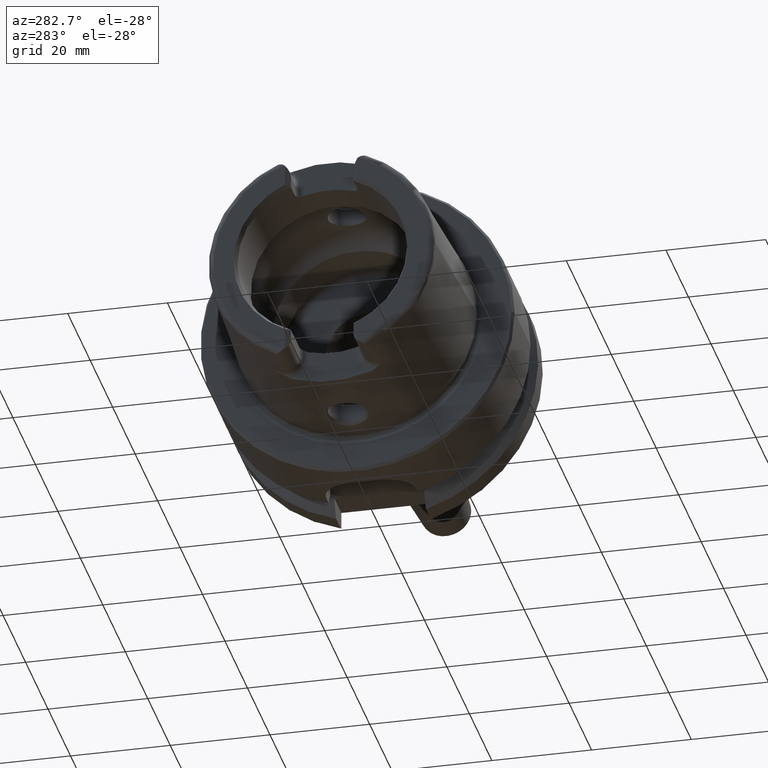
[diagram: clean part render]
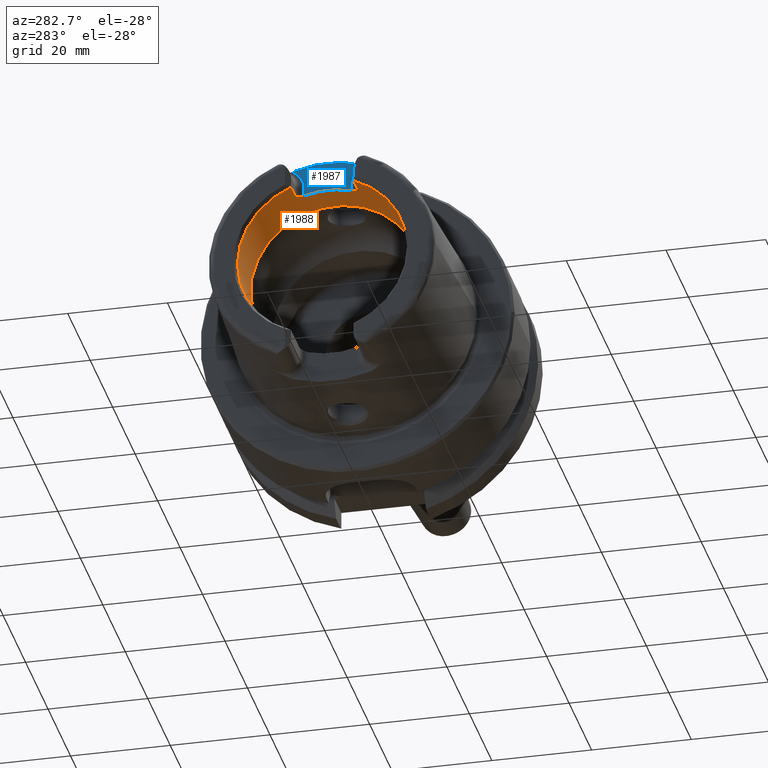
[diagram: same view with the hole feature highlighted: cylindrical wall and planar end face, labeled with their STEP entity ids]
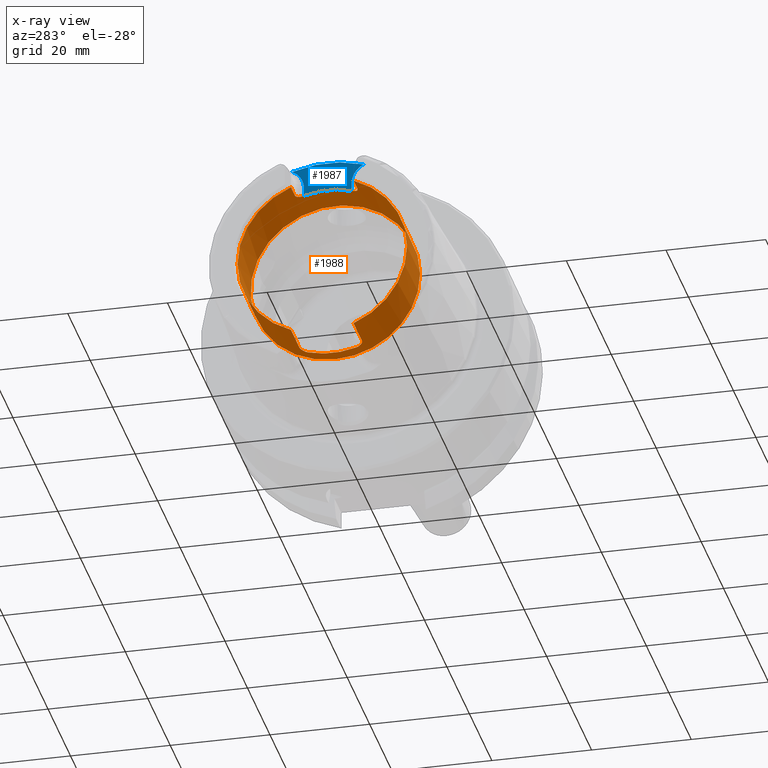
[diagram: x-ray of the same camera — body ghosted, the hole faces saturated]
A machine part, auxiliary view. The highlighted faces form one hole feature of diameter 34 mm: the cylindrical wall (entity #1988, orange) and its adjacent planar end face (entity #1987, blue) — they share a circular edge in the B-rep.
The next image is the same camera in x-ray (body ghosted, the hole faces saturated) — the bore reads through the body.
Wall:
#85=B_SPLINE_CURVE_WITH_KNOTS('',3,(#4143,#4144,#4145,#4146,#4147,#4148,
#4149,#4150,#4151,#4152),.UNSPECIFIED.,.F.,.F.,(4,2,2,2,4),(0.229569660485746,
0.289239803007022,0.348909945528297,0.405407845050218,0.46190574457214),
 .UNSPECIFIED.);
#86=B_SPLINE_CURVE_WITH_KNOTS('',3,(#4161,#4162,#4163,#4164,#4165,#4166,
#4167,#4168,#4169,#4170),.UNSPECIFIED.,.F.,.F.,(4,2,2,2,4),(0.46190574457214,
0.519239917776744,0.576574090981348,0.635410522815223,0.694246954649097),
 .UNSPECIFIED.);
#87=B_SPLINE_CURVE_WITH_KNOTS('',3,(#4179,#4180,#4181,#4182,#4183,#4184,
#4185,#4186,#4187,#4188),.UNSPECIFIED.,.F.,.F.,(4,2,2,2,4),(0.461905744572139,
0.518403644094061,0.574901543615982,0.634571686137257,0.694241828658533),
 .UNSPECIFIED.);
#88=B_SPLINE_CURVE_WITH_KNOTS('',3,(#4202,#4203,#4204,#4205,#4206,#4207,
#4208,#4209,#4210,#4211),.UNSPECIFIED.,.F.,.F.,(4,2,2,2,4),(0.229569660485747,
0.289239803007022,0.348909945528297,0.405407845050218,0.46190574457214),
 .UNSPECIFIED.);
#274=FACE_OUTER_BOUND('',#392,.T.);
#392=EDGE_LOOP('',(#1748,#1749,#1750,#1751,#1752,#1753,#1754,#1755,#1756,
#1757,#1758,#1759,#1760,#1761,#1762,#1763,#1764));
#438=LINE('',#2982,#543);
#444=LINE('',#2998,#549);
#450=LINE('',#3053,#555);
#454=LINE('',#3119,#559);
#516=LINE('',#4226,#621);
#543=VECTOR('',#2367,10.);
#549=VECTOR('',#2381,10.);
#555=VECTOR('',#2403,10.);
#559=VECTOR('',#2427,10.);
#621=VECTOR('',#2747,17.);
#714=CIRCLE('',#2208,17.);
#719=CIRCLE('',#2219,17.);
#720=CIRCLE('',#2221,17.);
#721=CIRCLE('',#2222,17.);
#722=CIRCLE('',#2223,17.);
#723=CIRCLE('',#2224,17.);
#724=CIRCLE('',#2225,17.);
#778=VERTEX_POINT('',#2935);
#785=VERTEX_POINT('',#2981);
#788=VERTEX_POINT('',#2988);
#791=VERTEX_POINT('',#2996);
#799=VERTEX_POINT('',#3043);
#802=VERTEX_POINT('',#3051);
#809=VERTEX_POINT('',#3086);
#814=VERTEX_POINT('',#3118);
#921=VERTEX_POINT('',#4141);
#923=VERTEX_POINT('',#4160);
#925=VERTEX_POINT('',#4178);
#926=VERTEX_POINT('',#4195);
#928=VERTEX_POINT('',#4222);
#929=VERTEX_POINT('',#4223);
#930=VERTEX_POINT('',#4225);
#992=EDGE_CURVE('',#785,#778,#438,.T.);
#1000=EDGE_CURVE('',#788,#791,#444,.T.);
#1013=EDGE_CURVE('',#799,#802,#450,.T.);
#1027=EDGE_CURVE('',#814,#809,#454,.T.);
#1193=EDGE_CURVE('',#921,#802,#85,.T.);
#1197=EDGE_CURVE('',#814,#923,#86,.T.);
#1202=EDGE_CURVE('',#785,#925,#87,.T.);
#1206=EDGE_CURVE('',#926,#925,#714,.T.);
#1210=EDGE_CURVE('',#926,#791,#88,.T.);
#1214=EDGE_CURVE('',#921,#923,#719,.T.);
#1215=EDGE_CURVE('',#928,#929,#720,.T.);
#1216=EDGE_CURVE('',#928,#930,#516,.T.);
#1217=EDGE_CURVE('',#799,#930,#721,.T.);
#1218=EDGE_CURVE('',#788,#809,#722,.T.);
#1219=EDGE_CURVE('',#930,#778,#723,.T.);
#1220=EDGE_CURVE('',#929,#928,#724,.T.);
#1748=ORIENTED_EDGE('',*,*,#1215,.F.);
#1749=ORIENTED_EDGE('',*,*,#1216,.T.);
#1750=ORIENTED_EDGE('',*,*,#1217,.F.);
#1751=ORIENTED_EDGE('',*,*,#1013,.T.);
#1752=ORIENTED_EDGE('',*,*,#1193,.F.);
#1753=ORIENTED_EDGE('',*,*,#1214,.T.);
#1754=ORIENTED_EDGE('',*,*,#1197,.F.);
#1755=ORIENTED_EDGE('',*,*,#1027,.T.);
#1756=ORIENTED_EDGE('',*,*,#1218,.F.);
#1757=ORIENTED_EDGE('',*,*,#1000,.T.);
#1758=ORIENTED_EDGE('',*,*,#1210,.F.);
#1759=ORIENTED_EDGE('',*,*,#1206,.T.);
#1760=ORIENTED_EDGE('',*,*,#1202,.F.);
#1761=ORIENTED_EDGE('',*,*,#992,.T.);
#1762=ORIENTED_EDGE('',*,*,#1219,.F.);
#1763=ORIENTED_EDGE('',*,*,#1216,.F.);
#1764=ORIENTED_EDGE('',*,*,#1220,.F.);
#1894=CYLINDRICAL_SURFACE('',#2220,17.);
#1988=ADVANCED_FACE('',(#274),#1894,.F.);
#2208=AXIS2_PLACEMENT_3D('',#4196,#2717,#2718);
#2219=AXIS2_PLACEMENT_3D('',#4220,#2741,#2742);
#2220=AXIS2_PLACEMENT_3D('',#4221,#2743,#2744);
#2221=AXIS2_PLACEMENT_3D('',#4224,#2745,#2746);
#2222=AXIS2_PLACEMENT_3D('',#4227,#2748,#2749);
#2223=AXIS2_PLACEMENT_3D('',#4228,#2750,#2751);
#2224=AXIS2_PLACEMENT_3D('',#4229,#2752,#2753);
#2225=AXIS2_PLACEMENT_3D('',#4230,#2754,#2755);
#2367=DIRECTION('',(-1.,0.,0.));
#2381=DIRECTION('',(1.,0.,0.));
#2403=DIRECTION('',(1.,0.,0.));
#2427=DIRECTION('',(-1.,0.,0.));
#2717=DIRECTION('center_axis',(-1.,0.,0.));
#2718=DIRECTION('ref_axis',(0.,1.,0.));
#2741=DIRECTION('center_axis',(-1.,0.,0.));
#2742=DIRECTION('ref_axis',(0.,1.,0.));
#2743=DIRECTION('center_axis',(-1.,0.,0.));
#2744=DIRECTION('ref_axis',(0.,1.,0.));
#2745=DIRECTION('center_axis',(-1.,0.,0.));
#2746=DIRECTION('ref_axis',(0.,0.,1.));
#2747=DIRECTION('',(-1.,0.,0.));
#2748=DIRECTION('center_axis',(1.,0.,0.));
#2749=DIRECTION('ref_axis',(0.,-1.,0.));
#2750=DIRECTION('center_axis',(1.,0.,0.));
#2751=DIRECTION('ref_axis',(0.,-1.,0.));
#2752=DIRECTION('center_axis',(1.,0.,0.));
#2753=DIRECTION('ref_axis',(0.,-1.,0.));
#2754=DIRECTION('center_axis',(-1.,0.,0.));
#2755=DIRECTION('ref_axis',(0.,0.,1.));
#2935=CARTESIAN_POINT('',(-31.,-6.27,-15.8014904360317));
#2981=CARTESIAN_POINT('',(-23.5,-6.27,-15.8014904360317));
#2982=CARTESIAN_POINT('',(-25.6423502691896,-6.27,-15.8014904360317));
#2988=CARTESIAN_POINT('',(-31.,6.27,-15.8014904360317));
#2996=CARTESIAN_POINT('',(-23.5,6.27,-15.8014904360317));
#2998=CARTESIAN_POINT('',(-25.6423502691896,6.27,-15.8014904360317));
#3043=CARTESIAN_POINT('',(-31.,-6.27,15.8014904360317));
#3051=CARTESIAN_POINT('',(-27.5,-6.27,15.8014904360317));
#3053=CARTESIAN_POINT('',(-25.6423502691896,-6.27,15.8014904360317));
#3086=CARTESIAN_POINT('',(-31.,6.27,15.8014904360317));
#3118=CARTESIAN_POINT('',(-27.5,6.27,15.8014904360317));
#3119=CARTESIAN_POINT('',(-25.6423502691896,6.27,15.8014904360317));
#4141=CARTESIAN_POINT('',(-26.,-4.77,16.3170800083839));
#4143=CARTESIAN_POINT('Ctrl Pts',(-26.,-4.77,16.3170800083839));
#4144=CARTESIAN_POINT('Ctrl Pts',(-26.,-4.96091029208457,16.2612708750845));
#4145=CARTESIAN_POINT('Ctrl Pts',(-26.0385404635846,-5.16378617408596,16.1979610859593));
#4146=CARTESIAN_POINT('Ctrl Pts',(-26.1950909803916,-5.53690543536203,16.0742436586733));
#4147=CARTESIAN_POINT('Ctrl Pts',(-26.3130861154278,-5.70721093092864,16.01400454532));
#4148=CARTESIAN_POINT('Ctrl Pts',(-26.5811791540138,-5.96960590306613,15.9179857910505));
#4149=CARTESIAN_POINT('Ctrl Pts',(-26.7467155703026,-6.082078486584,15.8749745356799));
#4150=CARTESIAN_POINT('Ctrl Pts',(-27.1119229195206,-6.23232125085234,15.8165946761251));
#4151=CARTESIAN_POINT('Ctrl Pts',(-27.3116736682603,-6.27,15.8014904360317));
#4152=CARTESIAN_POINT('Ctrl Pts',(-27.5,-6.27,15.8014904360317));
#4160=CARTESIAN_POINT('',(-26.,4.77,16.3170800083839));
#4161=CARTESIAN_POINT('Ctrl Pts',(-27.5,6.27,15.8014904360317));
#4162=CARTESIAN_POINT('Ctrl Pts',(-27.308886089318,6.27,15.8014904360317));
#4163=CARTESIAN_POINT('Ctrl Pts',(-27.1064099842243,6.23121026569193,15.8170435837256));
#4164=CARTESIAN_POINT('Ctrl Pts',(-26.7371019784685,6.07691823919465,15.8769617281184));
#4165=CARTESIAN_POINT('Ctrl Pts',(-26.5701870418163,5.96150738537594,15.9210500039306));
#4166=CARTESIAN_POINT('Ctrl Pts',(-26.3050641818979,5.69638452545756,16.017853695422));
#4167=CARTESIAN_POINT('Ctrl Pts',(-26.1900212186221,5.52750941197086,16.0774506535614));
#4168=CARTESIAN_POINT('Ctrl Pts',(-26.0374824299787,5.15846789211413,16.1996292802954));
#4169=CARTESIAN_POINT('Ctrl Pts',(-26.,4.95824289522375,16.2620506397863));
#4170=CARTESIAN_POINT('Ctrl Pts',(-26.,4.77,16.3170800083839));
#4178=CARTESIAN_POINT('',(-22.,-4.77,-16.3170800083839));
#4179=CARTESIAN_POINT('Ctrl Pts',(-23.5,-6.27,-15.8014904360317));
#4180=CARTESIAN_POINT('Ctrl Pts',(-23.3116736682603,-6.27,-15.8014904360317));
#4181=CARTESIAN_POINT('Ctrl Pts',(-23.1119229195206,-6.23232125085234,-15.8165946761251));
#4182=CARTESIAN_POINT('Ctrl Pts',(-22.7467155703026,-6.082078486584,-15.8749745356799));
#4183=CARTESIAN_POINT('Ctrl Pts',(-22.5811791540138,-5.96960590306613,-15.9179857910505));
#4184=CARTESIAN_POINT('Ctrl Pts',(-22.3130861154278,-5.70721093092864,-16.01400454532));
#4185=CARTESIAN_POINT('Ctrl Pts',(-22.1950909803916,-5.53690543536204,-16.0742436586733));
#4186=CARTESIAN_POINT('Ctrl Pts',(-22.0385404635846,-5.16378617408596,-16.1979610859593));
#4187=CARTESIAN_POINT('Ctrl Pts',(-22.,-4.96091029208457,-16.2612708750845));
#4188=CARTESIAN_POINT('Ctrl Pts',(-22.,-4.77,-16.3170800083839));
#4195=CARTESIAN_POINT('',(-22.,4.77,-16.3170800083839));
#4196=CARTESIAN_POINT('Origin',(-22.,0.,0.));
#4202=CARTESIAN_POINT('Ctrl Pts',(-22.,4.77,-16.3170800083839));
#4203=CARTESIAN_POINT('Ctrl Pts',(-22.,4.96091029208457,-16.2612708750845));
#4204=CARTESIAN_POINT('Ctrl Pts',(-22.0385404635846,5.16378617408596,-16.1979610859593));
#4205=CARTESIAN_POINT('Ctrl Pts',(-22.1950909803916,5.53690543536204,-16.0742436586733));
#4206=CARTESIAN_POINT('Ctrl Pts',(-22.3130861154278,5.70721093092864,-16.01400454532));
#4207=CARTESIAN_POINT('Ctrl Pts',(-22.5811791540138,5.96960590306613,-15.9179857910505));
#4208=CARTESIAN_POINT('Ctrl Pts',(-22.7467155703026,6.082078486584,-15.8749745356799));
#4209=CARTESIAN_POINT('Ctrl Pts',(-23.1119229195206,6.23232125085234,-15.8165946761251));
#4210=CARTESIAN_POINT('Ctrl Pts',(-23.3116736682603,6.27,-15.8014904360317));
#4211=CARTESIAN_POINT('Ctrl Pts',(-23.5,6.27,-15.8014904360317));
#4220=CARTESIAN_POINT('Origin',(-26.,0.,0.));
#4221=CARTESIAN_POINT('Origin',(-25.6423502691896,0.,0.));
#4222=CARTESIAN_POINT('',(-19.2847005383793,-17.,2.0818995585505E-15));
#4223=CARTESIAN_POINT('',(-19.2847005383793,-2.0818995585505E-15,-17.));
#4224=CARTESIAN_POINT('Origin',(-19.2847005383793,0.,0.));
#4225=CARTESIAN_POINT('',(-31.,-17.,2.0818995585505E-15));
#4226=CARTESIAN_POINT('',(-25.6423502691896,-17.,2.0818995585505E-15));
#4227=CARTESIAN_POINT('Origin',(-31.,0.,0.));
#4228=CARTESIAN_POINT('Origin',(-31.,0.,0.));
#4229=CARTESIAN_POINT('Origin',(-31.,0.,0.));
#4230=CARTESIAN_POINT('Origin',(-19.2847005383793,0.,0.));
End face:
#138=PLANE('',#2218);
#273=FACE_OUTER_BOUND('',#391,.T.);
#391=EDGE_LOOP('',(#1742,#1743,#1744,#1745,#1746,#1747));
#510=LINE('',#4142,#615);
#511=LINE('',#4171,#616);
#615=VECTOR('',#2683,10.);
#616=VECTOR('',#2696,10.);
#662=CIRCLE('',#2098,23.0180260521042);
#707=CIRCLE('',#2194,4.38);
#709=CIRCLE('',#2197,4.38);
#719=CIRCLE('',#2219,17.);
#826=VERTEX_POINT('',#3333);
#827=VERTEX_POINT('',#3348);
#920=VERTEX_POINT('',#4139);
#921=VERTEX_POINT('',#4141);
#922=VERTEX_POINT('',#4156);
#923=VERTEX_POINT('',#4160);
#1045=EDGE_CURVE('',#826,#827,#662,.T.);
#1192=EDGE_CURVE('',#920,#921,#510,.T.);
#1194=EDGE_CURVE('',#827,#920,#707,.T.);
#1196=EDGE_CURVE('',#922,#826,#709,.T.);
#1198=EDGE_CURVE('',#923,#922,#511,.T.);
#1214=EDGE_CURVE('',#921,#923,#719,.T.);
#1742=ORIENTED_EDGE('',*,*,#1194,.F.);
#1743=ORIENTED_EDGE('',*,*,#1045,.F.);
#1744=ORIENTED_EDGE('',*,*,#1196,.F.);
#1745=ORIENTED_EDGE('',*,*,#1198,.F.);
#1746=ORIENTED_EDGE('',*,*,#1214,.F.);
#1747=ORIENTED_EDGE('',*,*,#1192,.F.);
#1987=ADVANCED_FACE('',(#273),#138,.T.);
#2098=AXIS2_PLACEMENT_3D('',#3349,#2441,#2442);
#2194=AXIS2_PLACEMENT_3D('',#4154,#2686,#2687);
#2197=AXIS2_PLACEMENT_3D('',#4158,#2692,#2693);
#2218=AXIS2_PLACEMENT_3D('',#4219,#2739,#2740);
#2219=AXIS2_PLACEMENT_3D('',#4220,#2741,#2742);
#2441=DIRECTION('center_axis',(1.,0.,0.));
#2442=DIRECTION('ref_axis',(0.,1.,0.));
#2683=DIRECTION('',(0.,-1.58830189502884E-16,-1.));
#2686=DIRECTION('center_axis',(-1.,0.,0.));
#2687=DIRECTION('ref_axis',(0.,0.601141749549969,0.799142413433302));
#2692=DIRECTION('center_axis',(-1.,0.,0.));
#2693=DIRECTION('ref_axis',(0.,-0.601141749549969,0.799142413433301));
#2696=DIRECTION('',(0.,-1.58830189502884E-16,1.));
#2739=DIRECTION('center_axis',(-1.,0.,0.));
#2740=DIRECTION('ref_axis',(0.,0.,1.));
#2741=DIRECTION('center_axis',(-1.,0.,0.));
#2742=DIRECTION('ref_axis',(0.,1.,0.));
#3333=CARTESIAN_POINT('',(-26.,7.14127219004964,21.8822246319466));
#3348=CARTESIAN_POINT('',(-26.,-7.14127219004964,21.8822246319466));
#3349=CARTESIAN_POINT('Origin',(-26.,0.,0.));
#4139=CARTESIAN_POINT('',(-26.,-4.77,17.99));
#4141=CARTESIAN_POINT('',(-26.,-4.77,16.3170800083839));
#4142=CARTESIAN_POINT('',(-26.,-4.77,14.75));
#4154=CARTESIAN_POINT('Origin',(-26.,-9.15,17.99));
#4156=CARTESIAN_POINT('',(-26.,4.77,17.99));
#4158=CARTESIAN_POINT('Origin',(-26.,9.15,17.99));
#4160=CARTESIAN_POINT('',(-26.,4.77,16.3170800083839));
#4171=CARTESIAN_POINT('',(-26.,4.77,18.245));
#4219=CARTESIAN_POINT('Origin',(-26.,-2.22044604925031E-15,18.5));
#4220=CARTESIAN_POINT('Origin',(-26.,0.,0.));